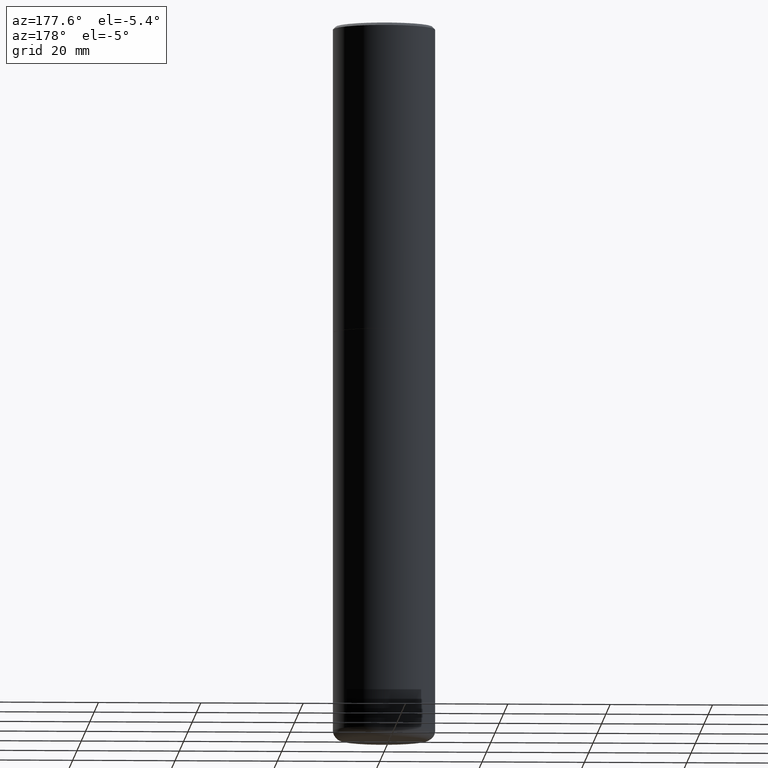
[diagram: clean part render]
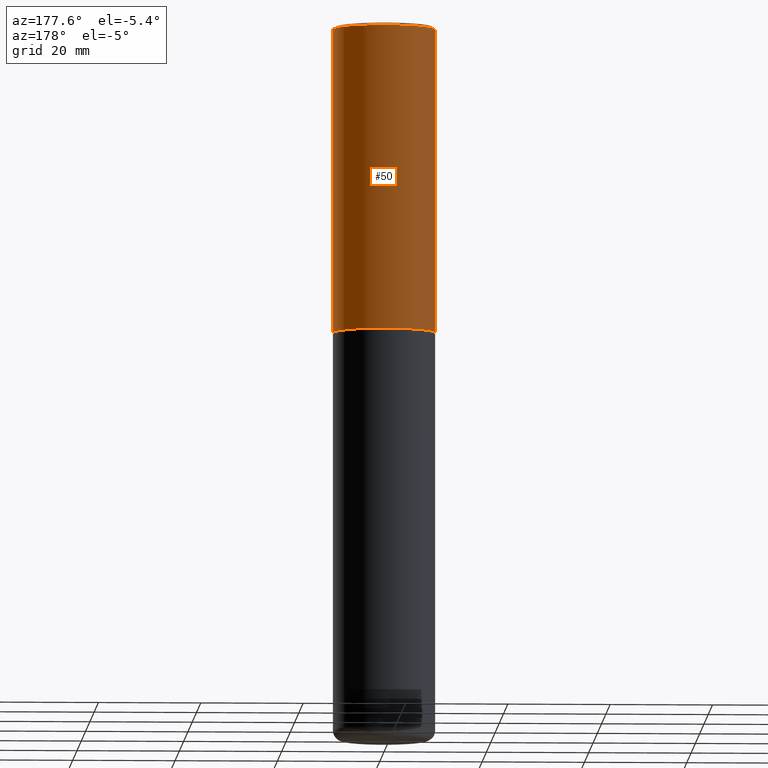
[diagram: same view with one face highlighted and labeled with its STEP entity id]
A machine part, auxiliary view. The second image highlights one B-rep face of the part: STEP entity #50.
In plain terms, the highlighted cylindrical surface (partial cylindrical patch) has radius 10 mm, axis along (-0, 0, 1).
Its self-contained STEP definition (entity closure, byte-faithful):
#13 = EDGE_CURVE ( 'NONE', #402, #133, #242, .T. ) ;
#22 = LINE ( 'NONE', #44, #201 ) ;
#32 = CYLINDRICAL_SURFACE ( 'NONE', #289, 0.3937000000000002164 ) ;
#37 = VECTOR ( 'NONE', #296, 39.37007874015748143 ) ;
#44 = CARTESIAN_POINT ( 'NONE',  ( -0.3937000000000002164, 2.797406750687515970E-15, -1.936584745033357576E-29 ) ) ;
#50 = ADVANCED_FACE ( 'NONE', ( #320 ), #32, .T. ) ;
#94 = ORIENTED_EDGE ( 'NONE', *, *, #99, .T. ) ;
#99 = EDGE_CURVE ( 'NONE', #133, #177, #22, .T. ) ;
#128 = ORIENTED_EDGE ( 'NONE', *, *, #176, .F. ) ;
#133 = VERTEX_POINT ( 'NONE', #182 ) ;
#140 = DIRECTION ( 'NONE',  ( -2.445468806185136597E-29, 3.491481338843145583E-15, 1.000000000000000000 ) ) ;
#149 = DIRECTION ( 'NONE',  ( -2.445468806185136877E-29, 3.491481338843145188E-15, 1.000000000000000000 ) ) ;
#172 = CARTESIAN_POINT ( 'NONE',  ( 0.000000000000000000, 0.000000000000000000, 0.000000000000000000 ) ) ;
#176 = EDGE_CURVE ( 'NONE', #210, #177, #218, .T. ) ;
#177 = VERTEX_POINT ( 'NONE', #253 ) ;
#182 = CARTESIAN_POINT ( 'NONE',  ( -0.3937000000000002720, -1.359550931339130834E-15, -2.361199999999999743 ) ) ;
#188 = DIRECTION ( 'NONE',  ( -2.445468806185136597E-29, 3.491481338843145583E-15, 1.000000000000000000 ) ) ;
#190 = DIRECTION ( 'NONE',  ( -2.445468806185136597E-29, 3.491481338843145583E-15, 1.000000000000000000 ) ) ;
#201 = VECTOR ( 'NONE', #149, 39.37007874015748143 ) ;
#206 = EDGE_CURVE ( 'NONE', #402, #210, #350, .T. ) ;
#208 = ORIENTED_EDGE ( 'NONE', *, *, #13, .T. ) ;
#210 = VERTEX_POINT ( 'NONE', #415 ) ;
#218 = CIRCLE ( 'NONE', #223, 0.3937000000000001054 ) ;
#223 = AXIS2_PLACEMENT_3D ( 'NONE', #384, #188, #316 ) ;
#229 = ORIENTED_EDGE ( 'NONE', *, *, #206, .F. ) ;
#242 = CIRCLE ( 'NONE', #362, 0.3937000000000002720 ) ;
#253 = CARTESIAN_POINT ( 'NONE',  ( -0.3937000000000001054, 2.679362779428220707E-15, -0.02000000000000008715 ) ) ;
#261 = DIRECTION ( 'NONE',  ( 1.000000000000000000, -6.982962677686265922E-15, 0.000000000000000000 ) ) ;
#269 = EDGE_LOOP ( 'NONE', ( #208, #94, #128, #229 ) ) ;
#289 = AXIS2_PLACEMENT_3D ( 'NONE', #172, #140, #336 ) ;
#296 = DIRECTION ( 'NONE',  ( -2.445468806185136877E-29, 3.491481338843145188E-15, 1.000000000000000000 ) ) ;
#309 = CARTESIAN_POINT ( 'NONE',  ( 0.3937000000000002720, -1.099327814348151984E-14, -2.361199999999999743 ) ) ;
#316 = DIRECTION ( 'NONE',  ( 1.000000000000000000, -6.982962677686266711E-15, 0.000000000000000000 ) ) ;
#320 = FACE_OUTER_BOUND ( 'NONE', #269, .T. ) ;
#333 = CARTESIAN_POINT ( 'NONE',  ( 0.3937000000000002164, -2.749192406205084794E-15, 1.919750796630861012E-29 ) ) ;
#336 = DIRECTION ( 'NONE',  ( 1.000000000000000000, -6.982962677686266711E-15, 4.876176775795935793E-29 ) ) ;
#350 = LINE ( 'NONE', #333, #37 ) ;
#362 = AXIS2_PLACEMENT_3D ( 'NONE', #414, #190, #261 ) ;
#384 = CARTESIAN_POINT ( 'NONE',  ( 4.890937612370294178E-31, -6.982962677686321191E-17, -0.02000000000000008715 ) ) ;
#402 = VERTEX_POINT ( 'NONE', #309 ) ;
#414 = CARTESIAN_POINT ( 'NONE',  ( 5.774240945164344150E-29, -8.244085737276435042E-15, -2.361199999999999743 ) ) ;
#415 = CARTESIAN_POINT ( 'NONE',  ( 0.3937000000000001054, -2.770807688499516128E-15, -0.02000000000000008715 ) ) ;